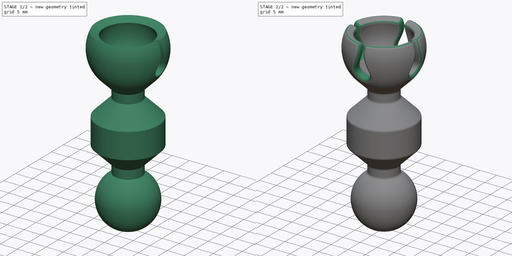
[diagram: build sequence overview — one tinted view per stage of 2, left to right]
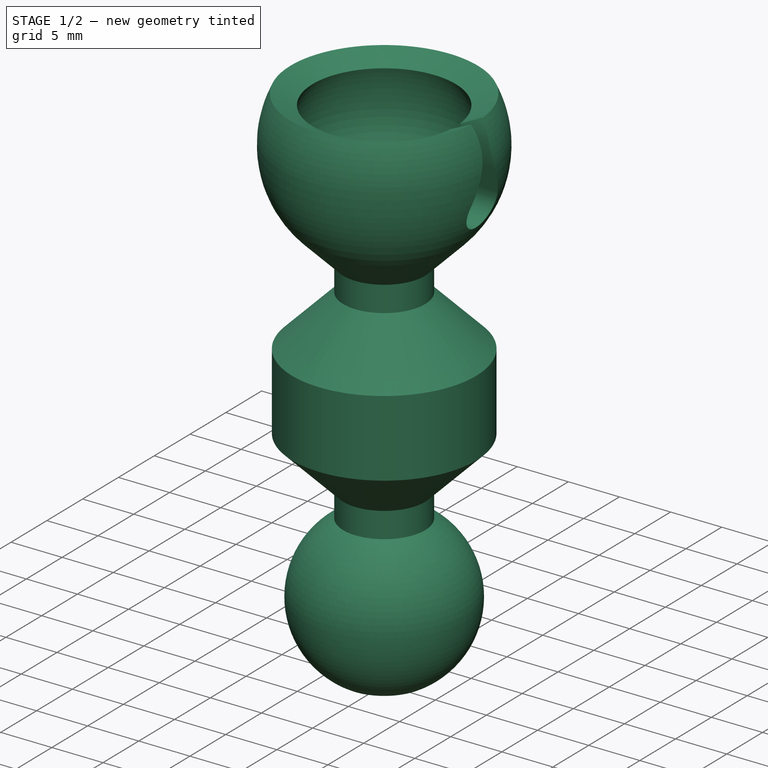
[diagram: stage 1 of 2 — iso view after this stage's code; geometry added in this stage tinted green]
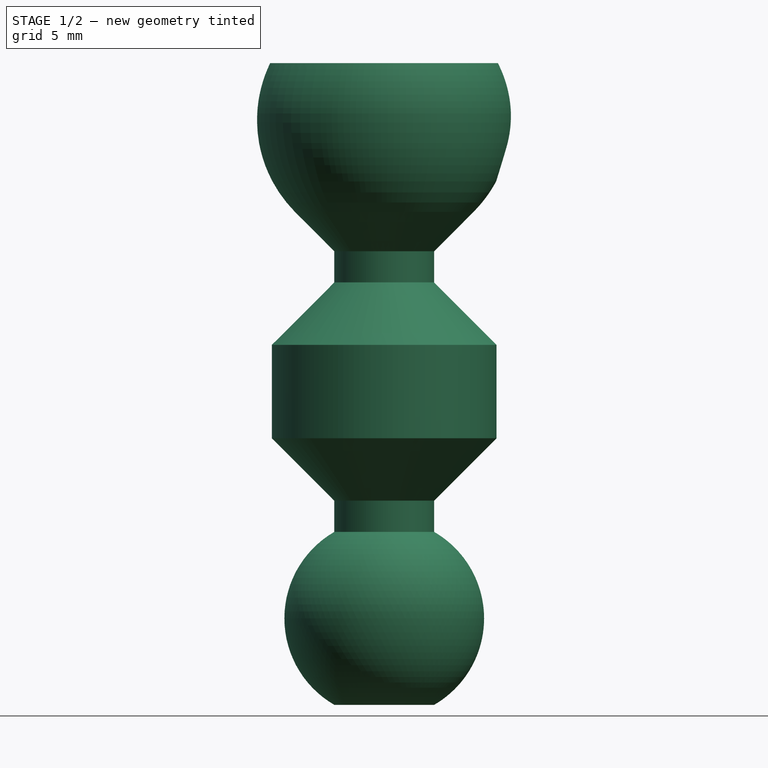
[diagram: stage 1 of 2 — front view after this stage's code; geometry added in this stage tinted green]
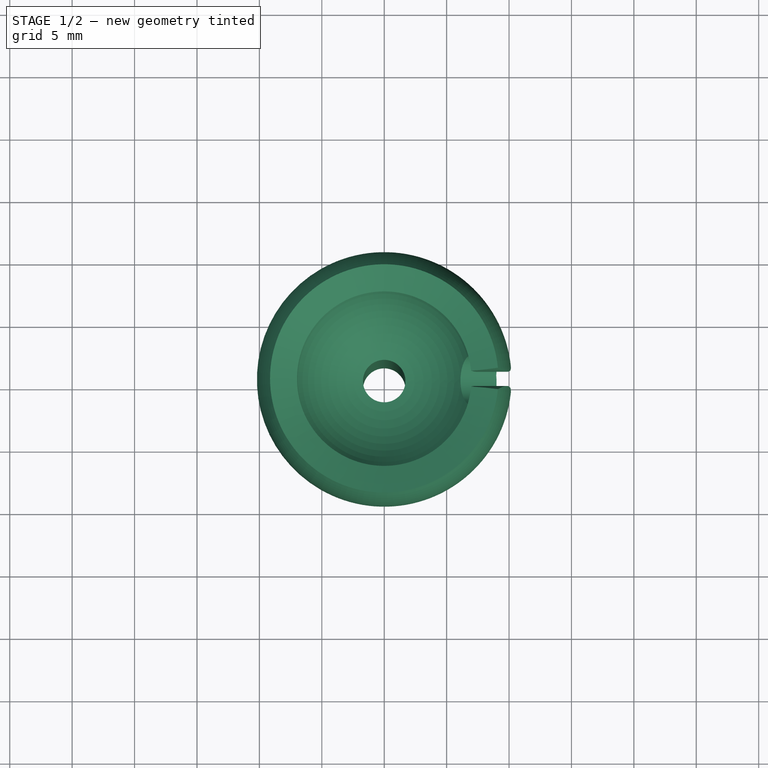
[diagram: stage 1 of 2 — top view after this stage's code; geometry added in this stage tinted green]
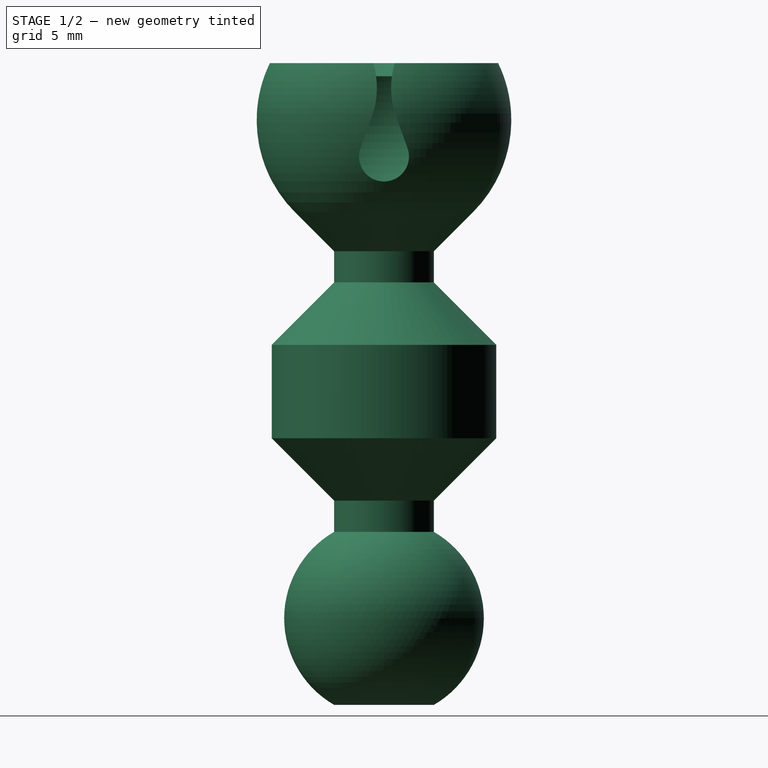
[diagram: stage 1 of 2 — right view after this stage's code; geometry added in this stage tinted green]
FCSTD DOCUMENT  (FreeCAD 0.19R24276 (Git))
Label: Ball-Joint_20mm_1U
License: All rights reserved
LicenseURL: http://en.wikipedia.org/wiki/All_rights_reserved
objects: Sketcher::SketchObject×2, PartDesign::Revolution×1, PartDesign::Pocket×1, PartDesign::PolarPattern×1, PartDesign::Fillet×1, PartDesign::Body×1
note: 10 computed .brp shape members not serialized (recipe doc carries the construction recipe); baked Part::Feature solids carry a one-line shape summary decoded from their .brp

FEATURE [Sketcher::SketchObject] Sketch
  FullyConstrained = true
  MapMode = 5
  Placement = pos=(0,0,0) rot=(1,0,0;1.5708rad)
  Support = -> [XZ_Plane]
  sketch-geometry (14):
    g0: ArcOfCircle CenterX=0 CenterY=-40 CenterZ=0 NormalX=0 NormalY=0 NormalZ=1 AngleXU=0 Radius=8 StartAngle=5.23599 EndAngle=7.33038
    g1: LineSegment StartX=4 StartY=-46.9282 StartZ=0 EndX=1.7 EndY=-46.9282 EndZ=0
    g2: ArcOfCircle CenterX=-0.2 CenterY=-0.08 CenterZ=0 NormalX=0 NormalY=0 NormalZ=1 AngleXU=0 Radius=10.4 StartAngle=5.49779 EndAngle=6.73697
    g3: LineSegment StartX=9.14746 StartY=4.47906 StartZ=0 EndX=6.99035 EndY=3.42697 EndZ=0
    g4: LineSegment StartX=1.7 StartY=-7.8511 StartZ=0 EndX=1.7 EndY=-46.9282 EndZ=0
    g5: LineSegment StartX=-0.2 StartY=-0.08 StartZ=0 EndX=6.99035 EndY=3.42697 EndZ=0
    g6: LineSegment StartX=4 StartY=-10.5878 StartZ=0 EndX=4 EndY=-13.0878 EndZ=0
    g7: ArcOfCircle CenterX=-0.2 CenterY=-0.08 CenterZ=0 NormalX=0 NormalY=0 NormalZ=1 AngleXU=0 Radius=8 StartAngle=4.95218 EndAngle=6.73697
    g8: LineSegment StartX=7.15391 StartY=-7.43391 StartZ=0 EndX=4 EndY=-10.5878 EndZ=0
    g9: LineSegment StartX=-0.2 StartY=-0.08 StartZ=0 EndX=9.37325 EndY=-4.1436 EndZ=0
    g10: LineSegment StartX=4 StartY=-13.0878 StartZ=0 EndX=9 EndY=-18.0878 EndZ=0
    g11: LineSegment StartX=9 StartY=-18.0878 StartZ=0 EndX=9 EndY=-25.5718 EndZ=0
    g12: LineSegment StartX=9 StartY=-25.5718 StartZ=0 EndX=4 EndY=-30.5718 EndZ=0
    g13: LineSegment StartX=4 StartY=-30.5718 StartZ=0 EndX=4 EndY=-33.0718 EndZ=0
  constraints (41):
    c: PointOnObject(g0,g-2)
    c: Coincident(g1,g0)
    c: Horizontal(g1)
    c: DistanceY(g0,g-1) = 40
    c: Coincident(g4,g1)
    c: Vertical(g4)
    c: DistanceX(g-1,g0) = 4
    c: Coincident(g13,g0)
    c: DistanceX(g-1,g0) = 4
    c: DistanceX(g-1,g1) = 1.7
    c: Coincident(g5,g3)
    c: Coincident(g5,g2)
    c: DistanceX(g2,g-1) = 0.2
    c: Coincident(g7,g3)
    c: Coincident(g3,g2)
    c: Vertical(g6)
    c: DistanceY(g2,g-1) = 0.08
    c: Distance(g3) = 2.4
    c: Coincident(g7,g2)
    c: PointOnObject(g2,g5)
    c: Angle(g-1,g5) = 0.453786
    c: Tangent(g8,g2) = 1.5708
    c: Equal(g7,g0)
    c: Coincident(g9,g2)
    c: PointOnObject(g9,g2)
    c: Distance(g9) = 10.4
    c: Angle(g9,g-1) = 0.401426
    c: Coincident(g8,g6)
    c: Coincident(g4,g7)
    c: Angle(g8) = -2.35619
    c: Coincident(g10,g11)
    c: Vertical(g11)
    c: Coincident(g11,g12)
    c: Coincident(g6,g10)
    c: Coincident(g13,g12)
    c: Tangent(g6,g13)
    c: Equal(g13,g6)
    c: Equal(g12,g10)
    c: Perpendicular(g10,g12)
    c: DistanceY(g13,g13) = 2.5
    c: DistanceX(g-1,g11) = 9
FEATURE [PartDesign::Revolution] Revolution
  Angle = 360
  Axis = (0,-2e-16,1)
  Base = (0,0,0)
  Placement = pos=(0,0,0) rot=(1,0,0;1.5708rad)
  Profile = -> Sketch
  ReferenceAxis = -> Sketch [V_Axis]
  Refine = true
  Reversed = true
FEATURE [Sketcher::SketchObject] Sketch001
  FullyConstrained = true
  MapMode = 5
  Placement = pos=(0,0,0) rot=(0.57735,0.57735,0.57735;2.0944rad)
  Support = -> [YZ_Plane]
  sketch-geometry (6):
    g0: ArcOfCircle CenterX=0 CenterY=-3 CenterZ=0 NormalX=0 NormalY=0 NormalZ=1 AngleXU=0 Radius=2 StartAngle=2.79253 EndAngle=6.63225
    g1: LineSegment StartX=-1.87938 StartY=-2.31596 StartZ=0 EndX=-0.989044 EndY=0.130233 EndZ=0
    g2: LineSegment StartX=1.87938 StartY=-2.31596 StartZ=0 EndX=0.989044 EndY=0.130233 EndZ=0
    g3: ArcOfCircle CenterX=-7.5 CenterY=2.5 CenterZ=0 NormalX=0 NormalY=0 NormalZ=1 AngleXU=0 Radius=6.92881 StartAngle=5.93412 EndAngle=6.73098
    g4: ArcOfCircle CenterX=7.5 CenterY=2.5 CenterZ=0 NormalX=0 NormalY=0 NormalZ=1 AngleXU=0 Radius=6.92881 StartAngle=2.6938 EndAngle=3.49065
    g5: LineSegment StartX=-1.25433 StartY=5.5 StartZ=0 EndX=1.25433 EndY=5.5 EndZ=0
  constraints (20):
    c: PointOnObject(g0,g-2)
    c: Coincident(g1,g0)
    c: Coincident(g2,g0)
    c: Coincident(g3,g1)
    c: Coincident(g4,g2)
    c: Coincident(g5,g3)
    c: Coincident(g5,g4)
    c: Horizontal(g5)
    c: Tangent(g4,g2)
    c: Tangent(g2,g0)
    c: Tangent(g0,g1)
    c: Tangent(g1,g3)
    c: Symmetric(g4,g3,g-2)
    c: DistanceX(g3,g4) = 15
    c: DistanceY(g-1,g4) = 2.5
    c: DistanceY(g0,g-1) = 3
    c: Radius(g0) = 2
    c: Equal(g2,g1)
    c: Angle(g1,g2) = 0.698132
    c: DistanceY(g0,g3) = 8.5
FEATURE [PartDesign::Pocket] Pocket
  BaseFeature = -> Revolution
  Length = 5
  Length2 = 100
  Placement = pos=(0,0,0) rot=(1,0,0;1.5708rad)
  Profile = -> Sketch001
  Refine = true
  Reversed = true
  Type = 1
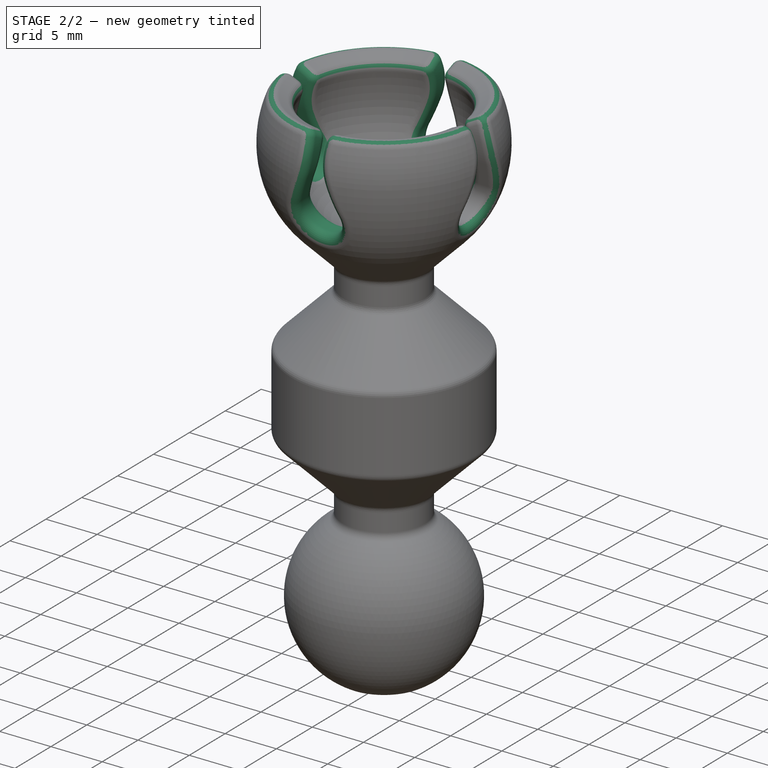
[diagram: stage 2 of 2 — iso view after this stage's code; geometry added in this stage tinted green]
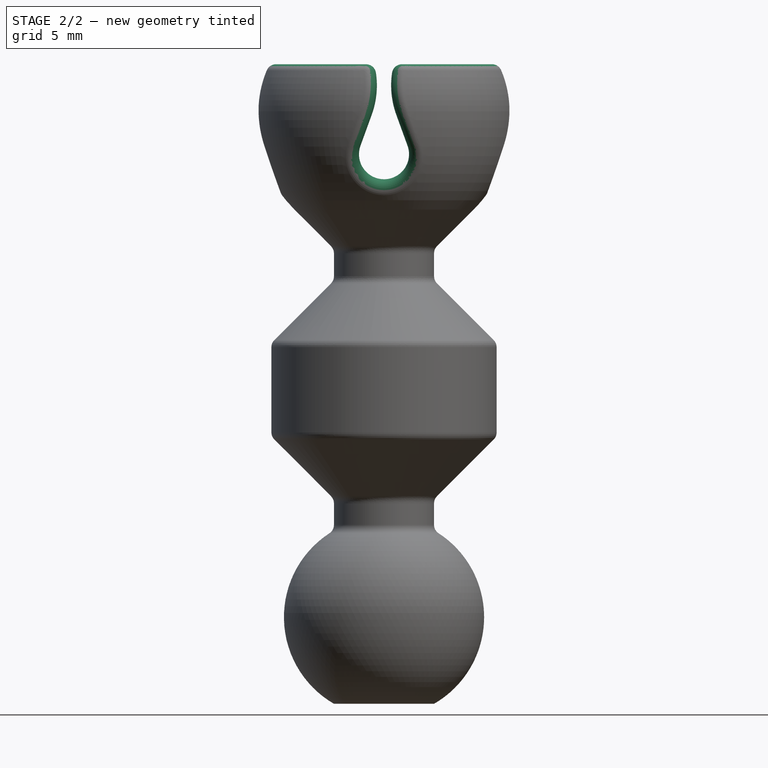
[diagram: stage 2 of 2 — front view after this stage's code; geometry added in this stage tinted green]
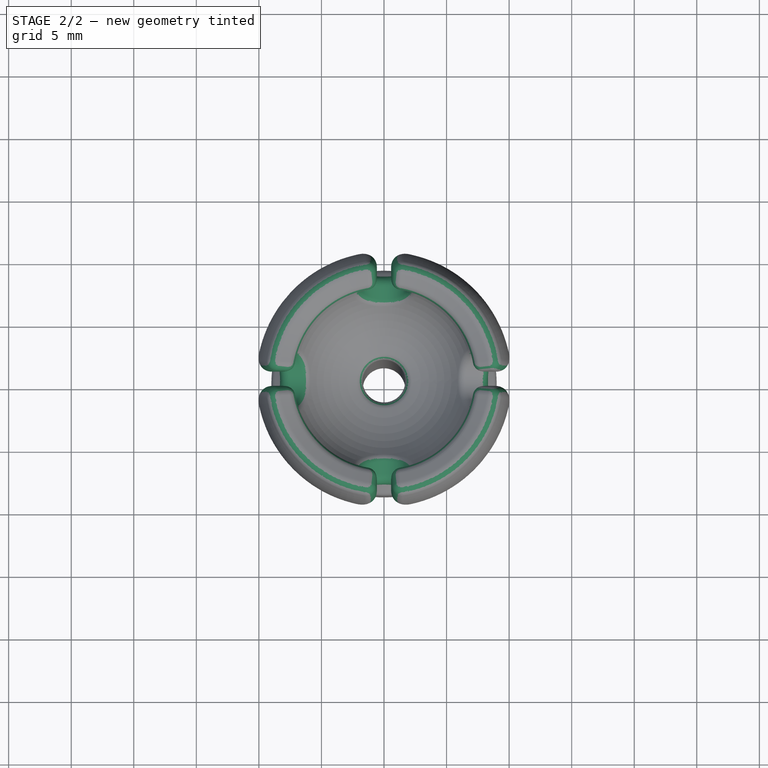
[diagram: stage 2 of 2 — top view after this stage's code; geometry added in this stage tinted green]
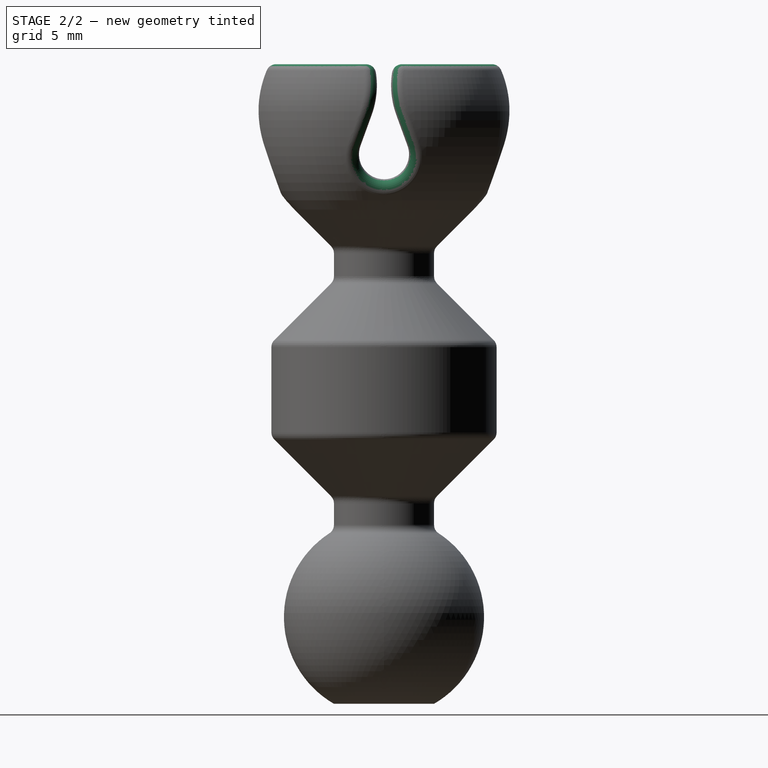
[diagram: stage 2 of 2 — right view after this stage's code; geometry added in this stage tinted green]
FEATURE [PartDesign::PolarPattern] PolarPattern
  Angle = 360
  Axis = -> Z_Axis
  BaseFeature = -> Pocket
  Occurrences = 4
  Originals = -> [Pocket]
  Placement = pos=(0,0,0) rot=(1,0,0;1.5708rad)
  Refine = true
FEATURE [PartDesign::Fillet] Fillet
  Base = -> PolarPattern [Face19,Face13,Face25,Face7,Face2,Face29,Edge108,Edge112,Edge114,Edge110,Edge106,Edge102]
  BaseFeature = -> PolarPattern
  Placement = pos=(0,0,0) rot=(1,0,0;1.5708rad)
  Radius = 0.8
  Refine = true
  SupportTransform = false
FEATURE [PartDesign::Body] Body  label="Ball-Joint_20mm"
  Group = -> [Sketch,Revolution,Sketch001,Pocket,PolarPattern,Fillet]
  Origin = -> Origin
  Tip = -> Fillet
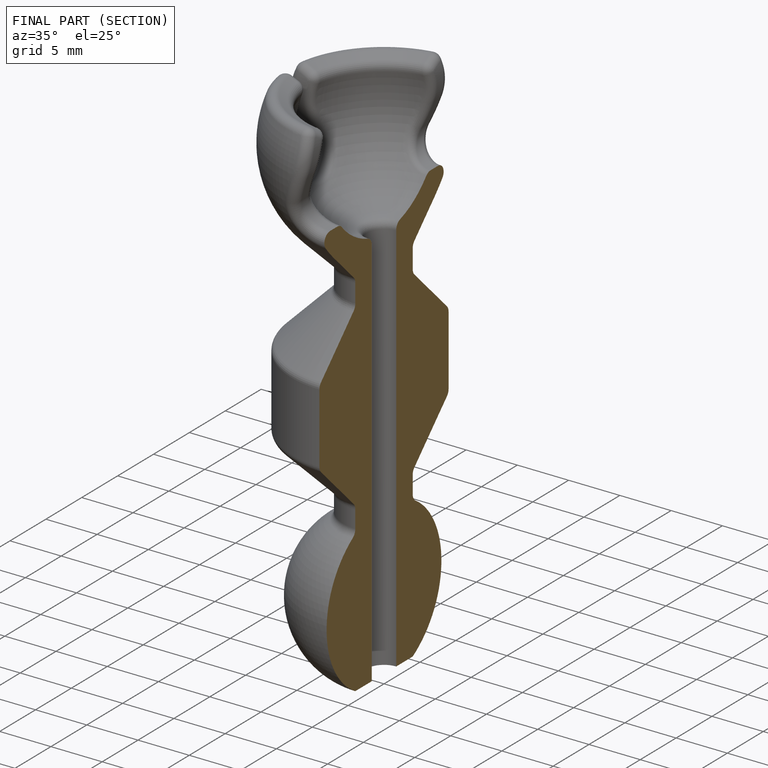
[diagram: finished part — half-section view (interior)]
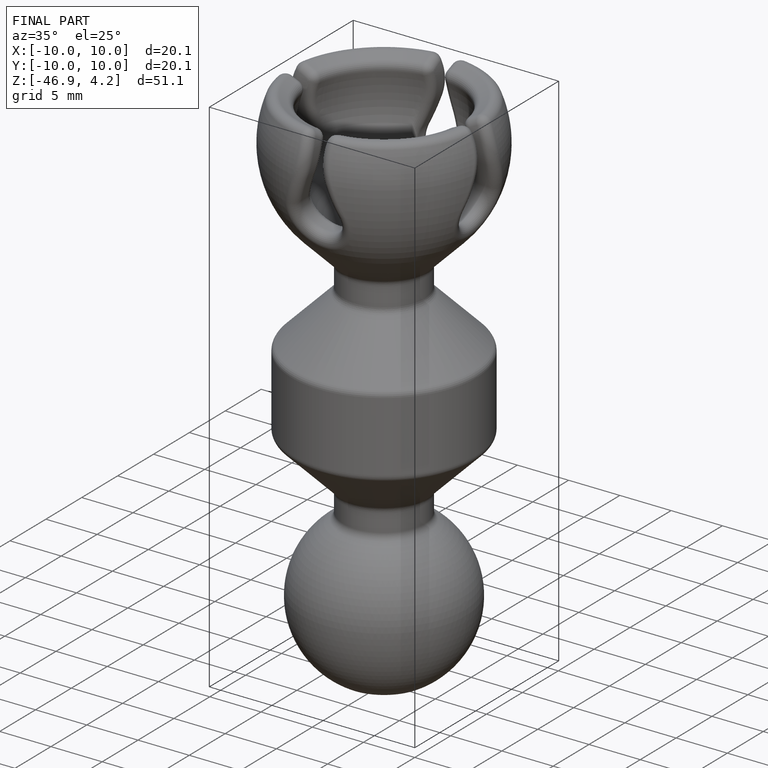
[diagram: finished part — iso view with bounding-box wireframe]
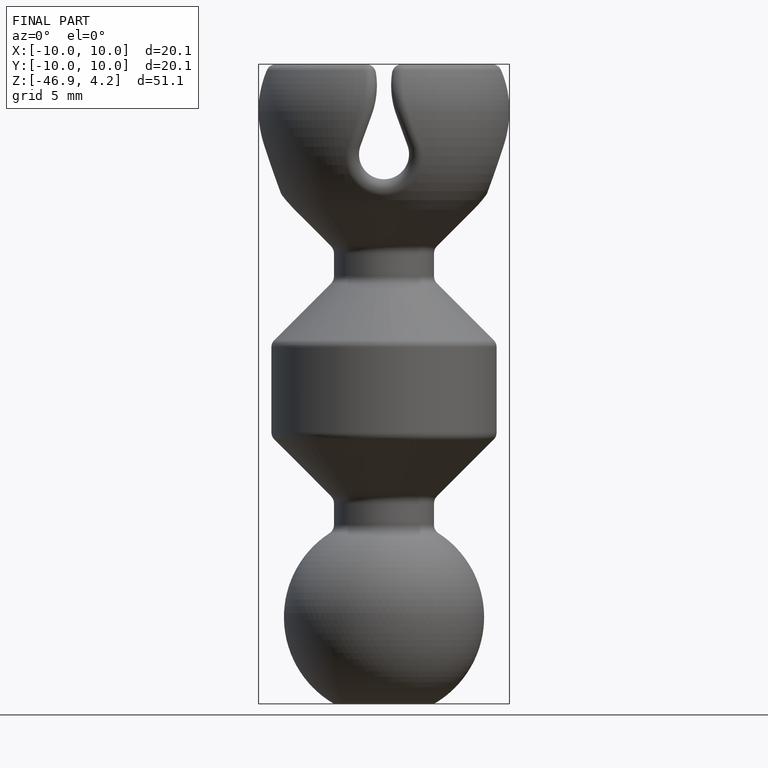
[diagram: finished part — front view with bounding-box wireframe]
